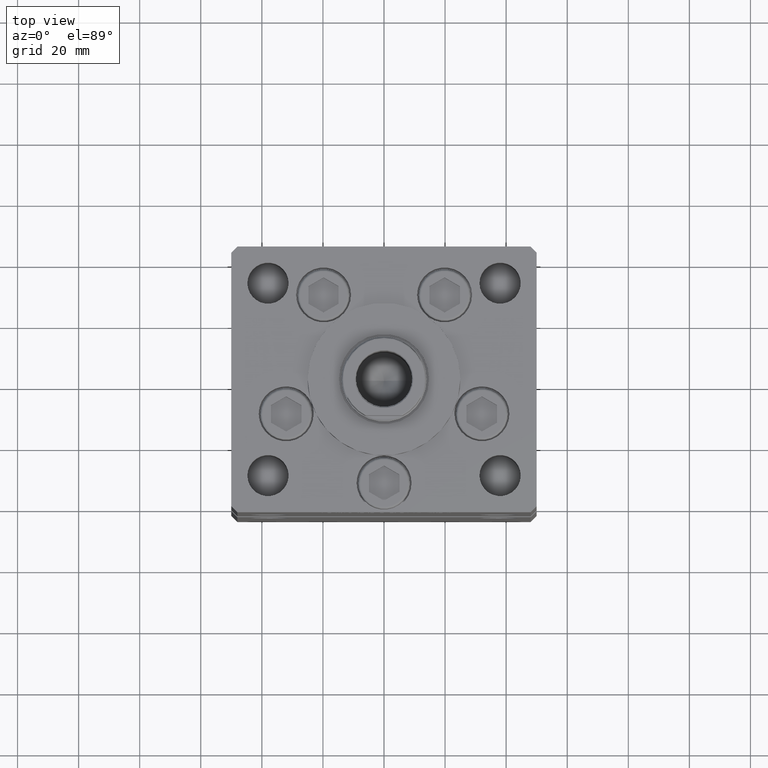
[diagram: clean part render]
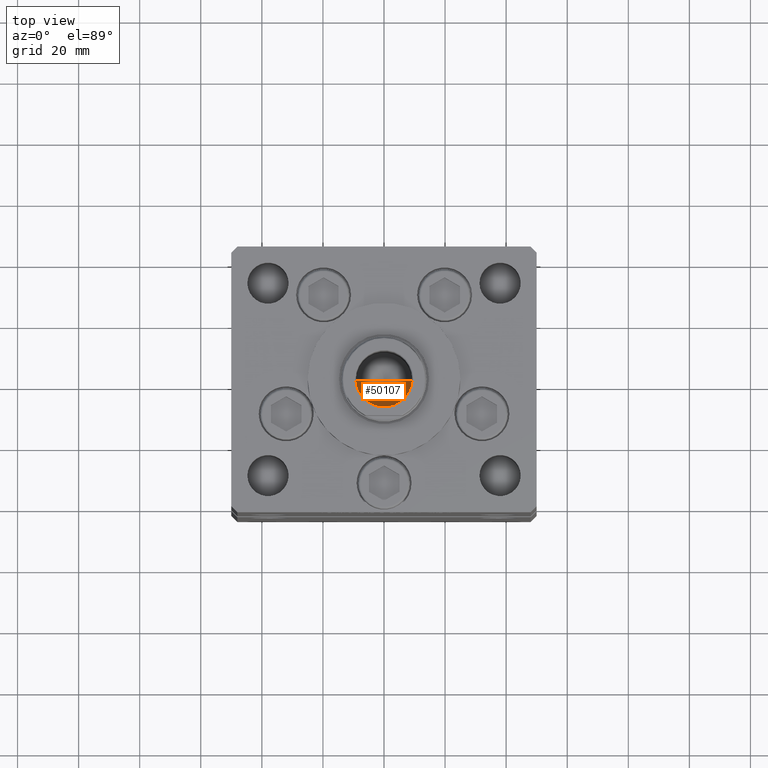
[diagram: same view with one face highlighted and labeled with its STEP entity id]
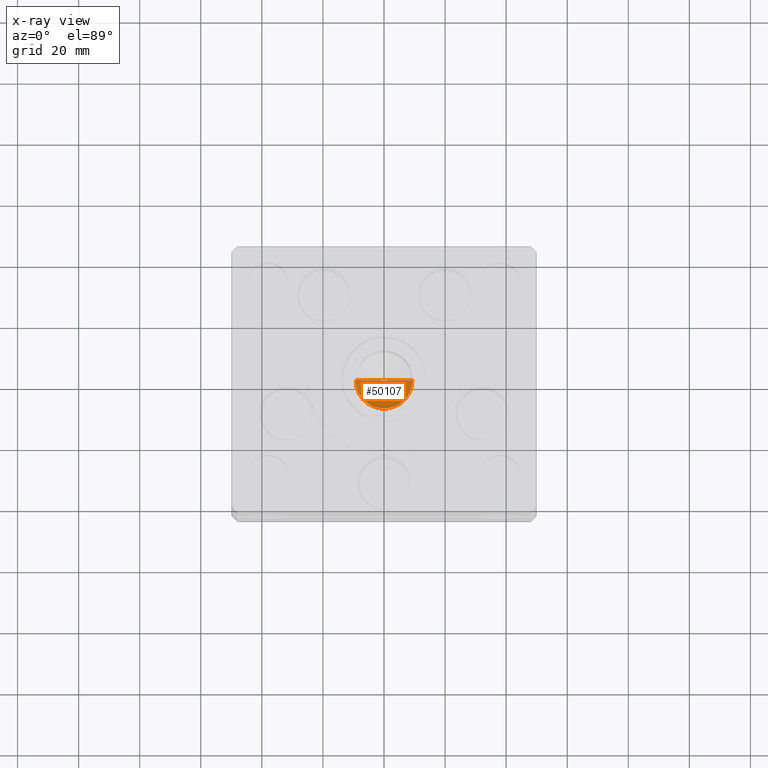
[diagram: x-ray of the same camera — body ghosted, the highlighted face saturated]
A machine part, top view. The second image highlights one B-rep face of the part: STEP entity #50107.
The next image is the same camera in x-ray: the body ghosted, the highlighted face saturated — about 9% of this face is hidden behind the body in this view.
In plain terms, the highlighted conical surface has half-angle 59 deg.
Its self-contained STEP definition (entity closure, byte-faithful):
#1947 = EDGE_CURVE ( 'NONE', #36525, #33527, #45906, .T. ) ;
#4173 = CARTESIAN_POINT ( 'NONE',  ( 9.249999999999994671, 0.000000000000000000, 130.2500000000000000 ) ) ;
#5568 = EDGE_CURVE ( 'NONE', #36525, #28252, #38672, .T. ) ;
#6843 = ORIENTED_EDGE ( 'NONE', *, *, #1947, .F. ) ;
#8670 = CARTESIAN_POINT ( 'NONE',  ( 9.249999999999994671, 0.000000000000000000, 130.2500000000000000 ) ) ;
#9559 = DIRECTION ( 'NONE',  ( 1.000000000000000000, 0.000000000000000000, 0.000000000000000000 ) ) ;
#14254 = CARTESIAN_POINT ( 'NONE',  ( -9.249999999999994671, 1.132798289211300909E-15, 130.2500000000000000 ) ) ;
#15659 = DIRECTION ( 'NONE',  ( 1.000000000000000000, 0.000000000000000000, 0.000000000000000000 ) ) ;
#16760 = EDGE_CURVE ( 'NONE', #28252, #33527, #43445, .T. ) ;
#18179 = CARTESIAN_POINT ( 'NONE',  ( -9.249999999999994671, 1.132798289211300909E-15, 130.2500000000000000 ) ) ;
#20286 = DIRECTION ( 'NONE',  ( 0.8571673007021117785, 0.000000000000000000, 0.5150380749100550437 ) ) ;
#22194 = CARTESIAN_POINT ( 'NONE',  ( 0.000000000000000000, 0.000000000000000000, 130.2500000000000000 ) ) ;
#22758 = EDGE_LOOP ( 'NONE', ( #6843, #34480, #33016 ) ) ;
#28252 = VERTEX_POINT ( 'NONE', #14254 ) ;
#28461 = CONICAL_SURFACE ( 'NONE', #44819, 9.249999999999994671, 1.029744258676653423 ) ;
#33016 = ORIENTED_EDGE ( 'NONE', *, *, #16760, .T. ) ;
#33527 = VERTEX_POINT ( 'NONE', #8670 ) ;
#33840 = DIRECTION ( 'NONE',  ( -0.8571673007021117785, 1.049727191138617956E-16, 0.5150380749100550437 ) ) ;
#33970 = AXIS2_PLACEMENT_3D ( 'NONE', #40445, #36143, #15659 ) ;
#34065 = DIRECTION ( 'NONE',  ( -0.000000000000000000, -0.000000000000000000, 1.000000000000000000 ) ) ;
#34480 = ORIENTED_EDGE ( 'NONE', *, *, #5568, .T. ) ;
#36143 = DIRECTION ( 'NONE',  ( -0.000000000000000000, -0.000000000000000000, 1.000000000000000000 ) ) ;
#36525 = VERTEX_POINT ( 'NONE', #38054 ) ;
#38054 = CARTESIAN_POINT ( 'NONE',  ( -1.046994375366439223E-14, 0.000000000000000000, 124.6920392739950643 ) ) ;
#38672 = LINE ( 'NONE', #18179, #46651 ) ;
#40445 = CARTESIAN_POINT ( 'NONE',  ( 0.000000000000000000, 0.000000000000000000, 130.2500000000000000 ) ) ;
#41893 = FACE_OUTER_BOUND ( 'NONE', #22758, .T. ) ;
#43445 = CIRCLE ( 'NONE', #33970, 9.249999999999994671 ) ;
#44819 = AXIS2_PLACEMENT_3D ( 'NONE', #22194, #34065, #9559 ) ;
#45906 = LINE ( 'NONE', #4173, #52556 ) ;
#46651 = VECTOR ( 'NONE', #33840, 1000.000000000000000 ) ;
#50107 = ADVANCED_FACE ( 'NONE', ( #41893 ), #28461, .F. ) ;
#52556 = VECTOR ( 'NONE', #20286, 1000.000000000000000 ) ;